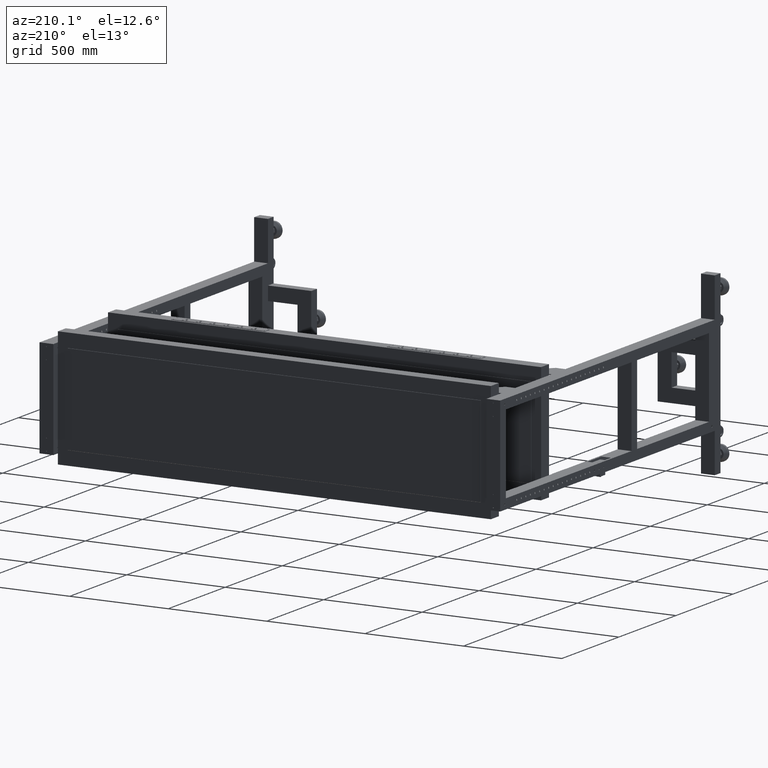
[diagram: clean part render]
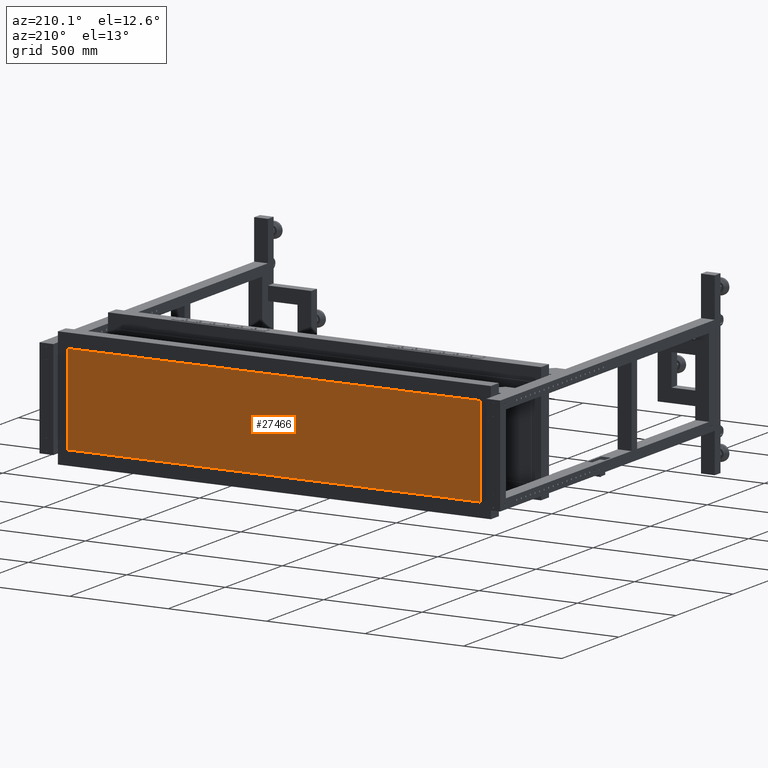
[diagram: same view with one face highlighted and labeled with its STEP entity id]
A machine part, auxiliary view. The second image highlights one B-rep face of the part: STEP entity #27466.
In plain terms, the highlighted planar face has unit normal (0, 1, 0).
Its self-contained STEP definition (entity closure, byte-faithful):
#867 = VECTOR ( 'NONE', #54189, 1000.000000000000000 ) ;
#2911 = ORIENTED_EDGE ( 'NONE', *, *, #23096, .T. ) ;
#4248 = CARTESIAN_POINT ( 'NONE',  ( -1216.662487437185973, 996.9410804020130854, -228.4899999999988438 ) ) ;
#8304 = EDGE_LOOP ( 'NONE', ( #33460, #76984, #30732, #2911 ) ) ;
#10251 = VECTOR ( 'NONE', #42220, 1000.000000000000000 ) ;
#11821 = EDGE_CURVE ( 'NONE', #31086, #35660, #23489, .T. ) ;
#21622 = CARTESIAN_POINT ( 'NONE',  ( 880.3175125628159776, 996.9410804020129717, 228.4900000000011744 ) ) ;
#23096 = EDGE_CURVE ( 'NONE', #35660, #48555, #32306, .T. ) ;
#23489 = LINE ( 'NONE', #35403, #867 ) ;
#25586 = EDGE_CURVE ( 'NONE', #31086, #37701, #35676, .T. ) ;
#25750 = CARTESIAN_POINT ( 'NONE',  ( -1216.662487437185973, 996.9410804020130854, -228.4899999999988438 ) ) ;
#27466 = ADVANCED_FACE ( 'NONE', ( #35093 ), #46939, .T. ) ;
#28521 = DIRECTION ( 'NONE',  ( 0.000000000000000000, -1.000000000000000472E-15, 1.000000000000000000 ) ) ;
#29092 = CARTESIAN_POINT ( 'NONE',  ( 880.3175125628159776, 996.9410804020134265, -228.4899999999988438 ) ) ;
#30732 = ORIENTED_EDGE ( 'NONE', *, *, #11821, .T. ) ;
#31086 = VERTEX_POINT ( 'NONE', #29092 ) ;
#32306 = LINE ( 'NONE', #25750, #77878 ) ;
#32823 = DIRECTION ( 'NONE',  ( 1.000000000000000000, 0.000000000000000000, -0.000000000000000000 ) ) ;
#33460 = ORIENTED_EDGE ( 'NONE', *, *, #54143, .T. ) ;
#35093 = FACE_OUTER_BOUND ( 'NONE', #8304, .T. ) ;
#35403 = CARTESIAN_POINT ( 'NONE',  ( 1180.317512562814045, 996.9410804020130854, -228.4899999999988438 ) ) ;
#35660 = VERTEX_POINT ( 'NONE', #4248 ) ;
#35676 = LINE ( 'NONE', #36477, #10251 ) ;
#36477 = CARTESIAN_POINT ( 'NONE',  ( 880.3175125628159776, 996.9410804020134265, -228.4899999999988438 ) ) ;
#37701 = VERTEX_POINT ( 'NONE', #21622 ) ;
#39611 = DIRECTION ( 'NONE',  ( 0.000000000000000000, 1.000000000000000000, 1.000000000000000472E-15 ) ) ;
#42220 = DIRECTION ( 'NONE',  ( 2.653611717788264139E-31, -1.000000000000000472E-15, 1.000000000000000000 ) ) ;
#46939 = PLANE ( 'NONE',  #78401 ) ;
#48555 = VERTEX_POINT ( 'NONE', #77093 ) ;
#52825 = LINE ( 'NONE', #57397, #78344 ) ;
#54143 = EDGE_CURVE ( 'NONE', #48555, #37701, #52825, .T. ) ;
#54189 = DIRECTION ( 'NONE',  ( -1.000000000000000000, 0.000000000000000000, 0.000000000000000000 ) ) ;
#57397 = CARTESIAN_POINT ( 'NONE',  ( -1216.662487437185973, 996.9410804020126307, 228.4900000000011744 ) ) ;
#60056 = CARTESIAN_POINT ( 'NONE',  ( -18.17248743718602455, 996.9410804020128580, 1.167234175856414311E-12 ) ) ;
#75671 = DIRECTION ( 'NONE',  ( 0.000000000000000000, -1.000000000000000472E-15, 1.000000000000000000 ) ) ;
#76984 = ORIENTED_EDGE ( 'NONE', *, *, #25586, .F. ) ;
#77093 = CARTESIAN_POINT ( 'NONE',  ( -1216.662487437185973, 996.9410804020126307, 228.4900000000011744 ) ) ;
#77878 = VECTOR ( 'NONE', #75671, 1000.000000000000000 ) ;
#78344 = VECTOR ( 'NONE', #32823, 1000.000000000000000 ) ;
#78401 = AXIS2_PLACEMENT_3D ( 'NONE', #60056, #39611, #28521 ) ;